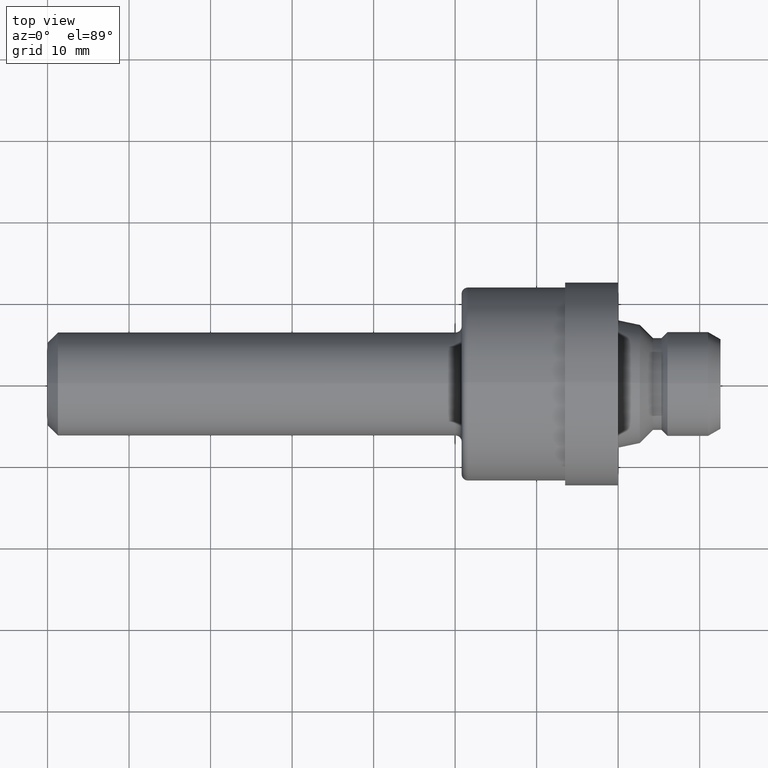
[diagram: clean part render]
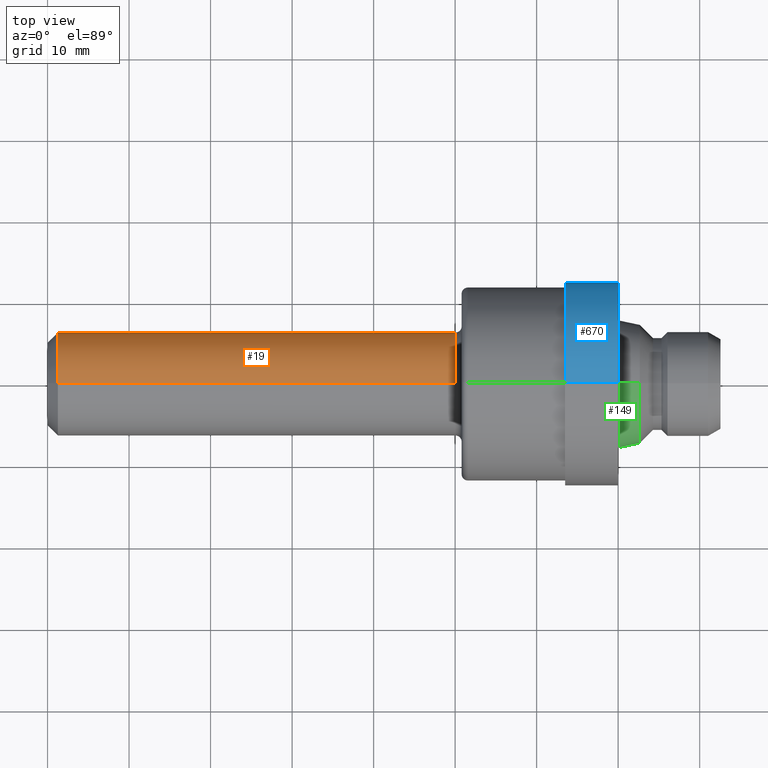
[diagram: same view with three faces highlighted in distinct colors, each labeled with its STEP entity id]
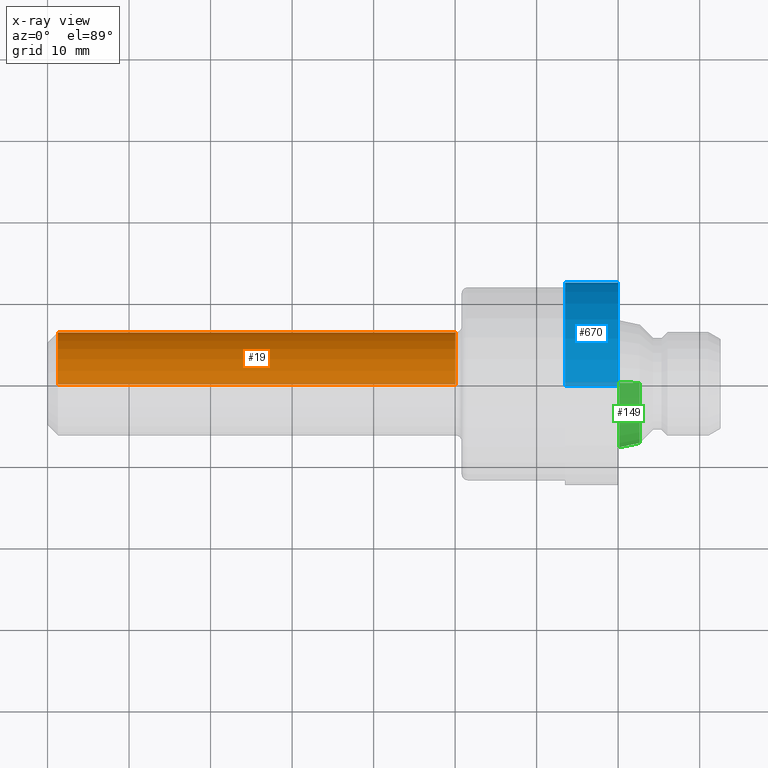
[diagram: x-ray of the same camera — body ghosted, the three highlighted faces saturated]
A machine part, top view with three faces highlighted in distinct colors.
The next image is the same camera in x-ray (body ghosted, the three faces saturated) — at least one of them is partly hidden behind the body in this view.
Their STEP definitions:

[orange] entity #19 — the highlighted cylindrical surface (partial cylindrical patch) has radius 6.35 mm, axis along (-1, -0, -0).
#7 = EDGE_CURVE ( 'NONE', #679, #421, #412, .T. ) ;
#19 = ADVANCED_FACE ( 'NONE', ( #64 ), #216, .T. ) ;
#27 = DIRECTION ( 'NONE',  ( -1.000000000000000000, -0.0000000000000000000, -0.0000000000000000000 ) ) ;
#64 = FACE_OUTER_BOUND ( 'NONE', #177, .T. ) ;
#71 = VERTEX_POINT ( 'NONE', #96 ) ;
#80 = DIRECTION ( 'NONE',  ( -1.000000000000000000, -0.0000000000000000000, -0.0000000000000000000 ) ) ;
#96 = CARTESIAN_POINT ( 'NONE',  ( 0.05000000000000000278, 3.061616997868383018E-17, -0.2500000000000000000 ) ) ;
#135 = VERTEX_POINT ( 'NONE', #625 ) ;
#160 = LINE ( 'NONE', #661, #658 ) ;
#177 = EDGE_LOOP ( 'NONE', ( #604, #683, #708, #429 ) ) ;
#216 = CYLINDRICAL_SURFACE ( 'NONE', #297, 0.2500000000000000000 ) ;
#220 = CARTESIAN_POINT ( 'NONE',  ( 0.0000000000000000000, 0.0000000000000000000, 0.0000000000000000000 ) ) ;
#231 = VECTOR ( 'NONE', #27, 39.37007874015748143 ) ;
#252 = CARTESIAN_POINT ( 'NONE',  ( 1.969999999999999973, 0.0000000000000000000, 0.2500000000000000000 ) ) ;
#289 = CIRCLE ( 'NONE', #822, 0.2500000000000000000 ) ;
#297 = AXIS2_PLACEMENT_3D ( 'NONE', #220, #298, #612 ) ;
#298 = DIRECTION ( 'NONE',  ( -1.000000000000000000, -0.0000000000000000000, -0.0000000000000000000 ) ) ;
#320 = EDGE_CURVE ( 'NONE', #135, #71, #160, .T. ) ;
#339 = DIRECTION ( 'NONE',  ( -1.000000000000000000, -0.0000000000000000000, -0.0000000000000000000 ) ) ;
#342 = CARTESIAN_POINT ( 'NONE',  ( 1.969999999999999973, 0.0000000000000000000, 0.0000000000000000000 ) ) ;
#412 = LINE ( 'NONE', #550, #231 ) ;
#421 = VERTEX_POINT ( 'NONE', #458 ) ;
#429 = ORIENTED_EDGE ( 'NONE', *, *, #7, .F. ) ;
#434 = CIRCLE ( 'NONE', #745, 0.2500000000000000000 ) ;
#458 = CARTESIAN_POINT ( 'NONE',  ( 0.05000000000000000278, 0.0000000000000000000, 0.2500000000000000000 ) ) ;
#478 = DIRECTION ( 'NONE',  ( 0.0000000000000000000, 0.0000000000000000000, 1.000000000000000000 ) ) ;
#505 = DIRECTION ( 'NONE',  ( 0.0000000000000000000, 0.0000000000000000000, 1.000000000000000000 ) ) ;
#550 = CARTESIAN_POINT ( 'NONE',  ( 0.0000000000000000000, 0.0000000000000000000, 0.2500000000000000000 ) ) ;
#604 = ORIENTED_EDGE ( 'NONE', *, *, #728, .T. ) ;
#612 = DIRECTION ( 'NONE',  ( 0.0000000000000000000, 0.0000000000000000000, 1.000000000000000000 ) ) ;
#625 = CARTESIAN_POINT ( 'NONE',  ( 1.969999999999999973, 3.245314017740486209E-17, -0.2500000000000000000 ) ) ;
#658 = VECTOR ( 'NONE', #803, 39.37007874015748143 ) ;
#661 = CARTESIAN_POINT ( 'NONE',  ( 0.0000000000000000000, 3.061616997868383018E-17, -0.2500000000000000000 ) ) ;
#679 = VERTEX_POINT ( 'NONE', #252 ) ;
#683 = ORIENTED_EDGE ( 'NONE', *, *, #320, .T. ) ;
#708 = ORIENTED_EDGE ( 'NONE', *, *, #747, .F. ) ;
#728 = EDGE_CURVE ( 'NONE', #679, #135, #434, .T. ) ;
#736 = CARTESIAN_POINT ( 'NONE',  ( 0.05000000000000000278, 0.0000000000000000000, 0.0000000000000000000 ) ) ;
#745 = AXIS2_PLACEMENT_3D ( 'NONE', #342, #80, #478 ) ;
#747 = EDGE_CURVE ( 'NONE', #421, #71, #289, .T. ) ;
#803 = DIRECTION ( 'NONE',  ( -1.000000000000000000, -0.0000000000000000000, -0.0000000000000000000 ) ) ;
#822 = AXIS2_PLACEMENT_3D ( 'NONE', #736, #339, #505 ) ;

[blue] entity #670 — the highlighted cylindrical surface (partial cylindrical patch) has radius 12.4333 mm, axis along (-1, -0, -0).
#26 = EDGE_CURVE ( 'NONE', #43, #363, #40, .T. ) ;
#33 = ORIENTED_EDGE ( 'NONE', *, *, #115, .F. ) ;
#40 = LINE ( 'NONE', #491, #391 ) ;
#41 = ORIENTED_EDGE ( 'NONE', *, *, #221, .T. ) ;
#42 = CARTESIAN_POINT ( 'NONE',  ( 2.500000000000000000, 0.0000000000000000000, 0.0000000000000000000 ) ) ;
#43 = VERTEX_POINT ( 'NONE', #558 ) ;
#49 = CARTESIAN_POINT ( 'NONE',  ( 2.500000000000000000, 0.0000000000000000000, 0.4894999999999999907 ) ) ;
#88 = ORIENTED_EDGE ( 'NONE', *, *, #669, .F. ) ;
#112 = DIRECTION ( 'NONE',  ( 0.0000000000000000000, 0.0000000000000000000, 1.000000000000000000 ) ) ;
#115 = EDGE_CURVE ( 'NONE', #194, #363, #544, .T. ) ;
#137 = CIRCLE ( 'NONE', #253, 0.4894999999999999907 ) ;
#167 = FACE_OUTER_BOUND ( 'NONE', #816, .T. ) ;
#190 = LINE ( 'NONE', #323, #543 ) ;
#194 = VERTEX_POINT ( 'NONE', #49 ) ;
#203 = ORIENTED_EDGE ( 'NONE', *, *, #26, .T. ) ;
#221 = EDGE_CURVE ( 'NONE', #805, #43, #137, .T. ) ;
#222 = AXIS2_PLACEMENT_3D ( 'NONE', #385, #256, #714 ) ;
#253 = AXIS2_PLACEMENT_3D ( 'NONE', #709, #317, #773 ) ;
#256 = DIRECTION ( 'NONE',  ( -1.000000000000000000, -0.0000000000000000000, -0.0000000000000000000 ) ) ;
#317 = DIRECTION ( 'NONE',  ( -1.000000000000000000, -0.0000000000000000000, -0.0000000000000000000 ) ) ;
#323 = CARTESIAN_POINT ( 'NONE',  ( 0.0000000000000000000, 0.0000000000000000000, 0.4894999999999999907 ) ) ;
#356 = DIRECTION ( 'NONE',  ( -1.000000000000000000, -0.0000000000000000000, -0.0000000000000000000 ) ) ;
#363 = VERTEX_POINT ( 'NONE', #398 ) ;
#385 = CARTESIAN_POINT ( 'NONE',  ( 0.0000000000000000000, 0.0000000000000000000, 0.0000000000000000000 ) ) ;
#391 = VECTOR ( 'NONE', #356, 39.37007874015748143 ) ;
#398 = CARTESIAN_POINT ( 'NONE',  ( 2.500000000000000000, 5.994646081826293618E-17, -0.4894999999999999907 ) ) ;
#491 = CARTESIAN_POINT ( 'NONE',  ( 0.0000000000000000000, 5.994646081826293618E-17, -0.4894999999999999907 ) ) ;
#500 = DIRECTION ( 'NONE',  ( -1.000000000000000000, -0.0000000000000000000, -0.0000000000000000000 ) ) ;
#543 = VECTOR ( 'NONE', #830, 39.37007874015748143 ) ;
#544 = CIRCLE ( 'NONE', #704, 0.4894999999999999907 ) ;
#558 = CARTESIAN_POINT ( 'NONE',  ( 2.754999999999999893, 5.994646081826293618E-17, -0.4894999999999999907 ) ) ;
#669 = EDGE_CURVE ( 'NONE', #805, #194, #190, .T. ) ;
#670 = ADVANCED_FACE ( 'NONE', ( #167 ), #672, .T. ) ;
#672 = CYLINDRICAL_SURFACE ( 'NONE', #222, 0.4894999999999999907 ) ;
#704 = AXIS2_PLACEMENT_3D ( 'NONE', #42, #500, #112 ) ;
#709 = CARTESIAN_POINT ( 'NONE',  ( 2.754999999999999893, 0.0000000000000000000, 0.0000000000000000000 ) ) ;
#714 = DIRECTION ( 'NONE',  ( 0.0000000000000000000, 0.0000000000000000000, 1.000000000000000000 ) ) ;
#717 = CARTESIAN_POINT ( 'NONE',  ( 2.754999999999999893, 0.0000000000000000000, 0.4894999999999999907 ) ) ;
#773 = DIRECTION ( 'NONE',  ( 0.0000000000000000000, 0.0000000000000000000, 1.000000000000000000 ) ) ;
#805 = VERTEX_POINT ( 'NONE', #717 ) ;
#816 = EDGE_LOOP ( 'NONE', ( #41, #203, #33, #88 ) ) ;
#830 = DIRECTION ( 'NONE',  ( -1.000000000000000000, -0.0000000000000000000, -0.0000000000000000000 ) ) ;

[green] entity #149 — the highlighted conical surface has half-angle 12 deg.
#15 = CARTESIAN_POINT ( 'NONE',  ( 2.760940662318866590, 3.771756283557232107E-17, -0.3079872732434589255 ) ) ;
#21 = LINE ( 'NONE', #632, #686 ) ;
#23 = VECTOR ( 'NONE', #496, 39.37007874015748854 ) ;
#35 = AXIS2_PLACEMENT_3D ( 'NONE', #697, #494, #312 ) ;
#73 = EDGE_CURVE ( 'NONE', #838, #555, #193, .T. ) ;
#94 = VERTEX_POINT ( 'NONE', #757 ) ;
#100 = CARTESIAN_POINT ( 'NONE',  ( 2.859999999999999876, 0.0000000000000000000, 0.2869315610246476189 ) ) ;
#131 = CARTESIAN_POINT ( 'NONE',  ( 2.859999999999999876, 0.0000000000000000000, 0.2869315610246476189 ) ) ;
#149 = ADVANCED_FACE ( 'NONE', ( #333 ), #811, .T. ) ;
#159 = EDGE_CURVE ( 'NONE', #94, #838, #307, .T. ) ;
#193 = LINE ( 'NONE', #100, #23 ) ;
#239 = DIRECTION ( 'NONE',  ( -1.000000000000000000, -0.0000000000000000000, -0.0000000000000000000 ) ) ;
#271 = ORIENTED_EDGE ( 'NONE', *, *, #73, .T. ) ;
#290 = AXIS2_PLACEMENT_3D ( 'NONE', #389, #844, #460 ) ;
#306 = VERTEX_POINT ( 'NONE', #15 ) ;
#307 = CIRCLE ( 'NONE', #35, 0.2869315610246476189 ) ;
#312 = DIRECTION ( 'NONE',  ( 0.0000000000000000000, 0.0000000000000000000, 1.000000000000000000 ) ) ;
#333 = FACE_OUTER_BOUND ( 'NONE', #617, .T. ) ;
#389 = CARTESIAN_POINT ( 'NONE',  ( 2.760940662318866590, 0.0000000000000000000, 0.0000000000000000000 ) ) ;
#460 = DIRECTION ( 'NONE',  ( 0.0000000000000000000, 0.0000000000000000000, 1.000000000000000000 ) ) ;
#494 = DIRECTION ( 'NONE',  ( -1.000000000000000000, -0.0000000000000000000, -0.0000000000000000000 ) ) ;
#496 = DIRECTION ( 'NONE',  ( -0.9781476007338059109, 0.0000000000000000000, 0.2079116908177577328 ) ) ;
#503 = ORIENTED_EDGE ( 'NONE', *, *, #159, .T. ) ;
#555 = VERTEX_POINT ( 'NONE', #764 ) ;
#617 = EDGE_LOOP ( 'NONE', ( #768, #503, #271, #815 ) ) ;
#632 = CARTESIAN_POINT ( 'NONE',  ( 2.859999999999999876, 3.513898177831881694E-17, -0.2869315610246476189 ) ) ;
#666 = EDGE_CURVE ( 'NONE', #94, #306, #21, .T. ) ;
#686 = VECTOR ( 'NONE', #843, 39.37007874015748854 ) ;
#693 = DIRECTION ( 'NONE',  ( 0.0000000000000000000, 0.0000000000000000000, 1.000000000000000000 ) ) ;
#697 = CARTESIAN_POINT ( 'NONE',  ( 2.859999999999999876, 0.0000000000000000000, 0.0000000000000000000 ) ) ;
#757 = CARTESIAN_POINT ( 'NONE',  ( 2.859999999999999876, 3.513898177831881694E-17, -0.2869315610246476189 ) ) ;
#758 = CARTESIAN_POINT ( 'NONE',  ( 2.859999999999999876, 0.0000000000000000000, 0.0000000000000000000 ) ) ;
#764 = CARTESIAN_POINT ( 'NONE',  ( 2.760940662318866590, 0.0000000000000000000, 0.3079872732434589255 ) ) ;
#768 = ORIENTED_EDGE ( 'NONE', *, *, #666, .F. ) ;
#781 = CIRCLE ( 'NONE', #290, 0.3079872732434589255 ) ;
#806 = EDGE_CURVE ( 'NONE', #306, #555, #781, .T. ) ;
#811 = CONICAL_SURFACE ( 'NONE', #835, 0.2869315610246476189, 0.2094395102393178942 ) ;
#815 = ORIENTED_EDGE ( 'NONE', *, *, #806, .F. ) ;
#835 = AXIS2_PLACEMENT_3D ( 'NONE', #758, #239, #693 ) ;
#838 = VERTEX_POINT ( 'NONE', #131 ) ;
#843 = DIRECTION ( 'NONE',  ( -0.9781476007338059109, 2.546183866652811344E-17, -0.2079116908177577328 ) ) ;
#844 = DIRECTION ( 'NONE',  ( -1.000000000000000000, -0.0000000000000000000, -0.0000000000000000000 ) ) ;